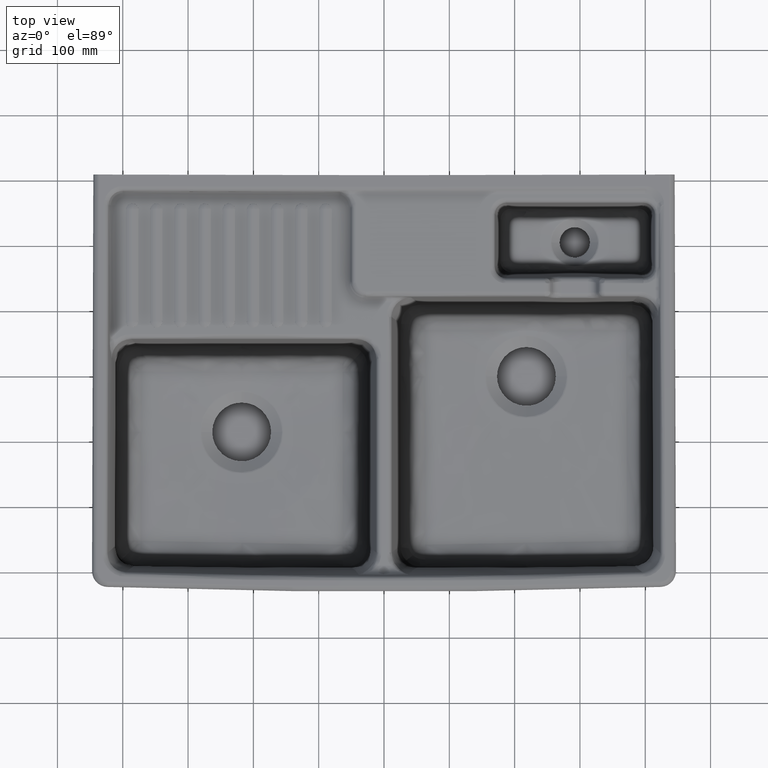
[diagram: clean part render]
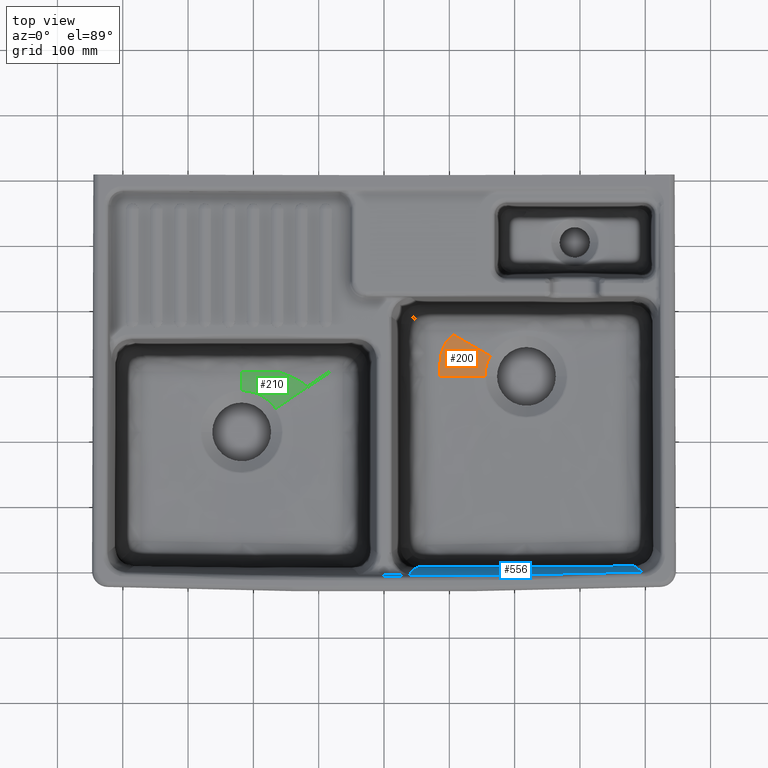
[diagram: same view with three faces highlighted in distinct colors, each labeled with its STEP entity id]
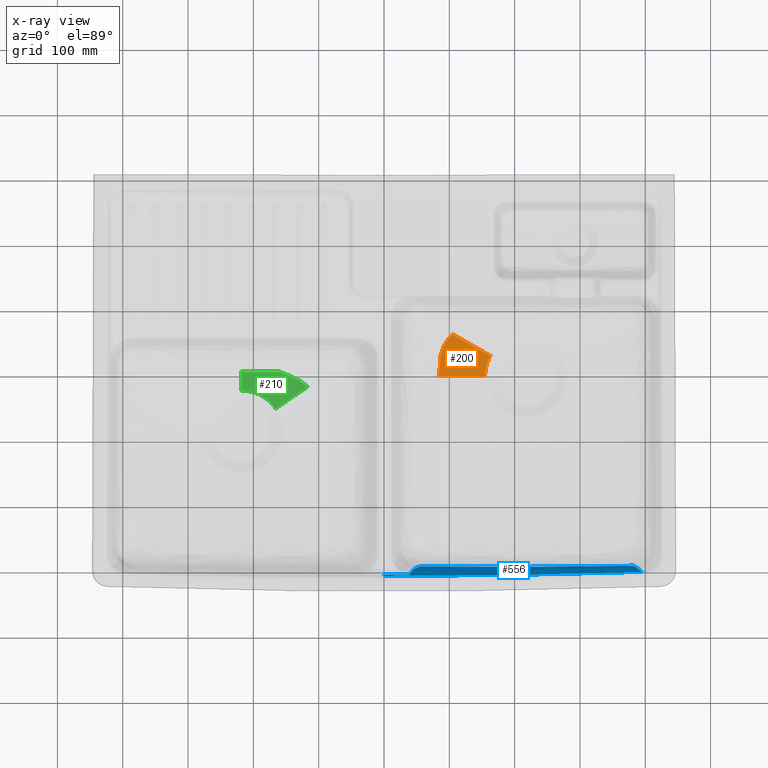
[diagram: x-ray of the same camera — body ghosted, the three highlighted faces saturated]
A machine part, top view with three faces highlighted in distinct colors.
The next image is the same camera in x-ray (body ghosted, the three faces saturated) — at least one of them is partly hidden behind the body in this view.
Their STEP definitions:

[orange] entity #200 — the highlighted face is a freeform B-spline surface patch.
#200=ADVANCED_FACE('',(#1059),#655,.T.);
#655=B_SPLINE_SURFACE_WITH_KNOTS('',7,2,((#9869,#9870,#9871),(#9872,#9873,
#9874),(#9875,#9876,#9877),(#9878,#9879,#9880),(#9881,#9882,#9883),(#9884,
#9885,#9886),(#9887,#9888,#9889),(#9890,#9891,#9892)),.UNSPECIFIED.,.F.,
 .F.,.F.,(8,8),(3,3),(0.,1.),(0.,1.),.UNSPECIFIED.);
#1059=FACE_OUTER_BOUND('',#1510,.T.);
#1510=EDGE_LOOP('',(#2166,#2167,#2168,#2169,#2170));
#2166=ORIENTED_EDGE('',*,*,#5226,.F.);
#2167=ORIENTED_EDGE('',*,*,#5227,.F.);
#2168=ORIENTED_EDGE('',*,*,#5150,.T.);
#2169=ORIENTED_EDGE('',*,*,#5149,.T.);
#2170=ORIENTED_EDGE('',*,*,#5228,.F.);
#4372=VERTEX_POINT('',#8505);
#4373=VERTEX_POINT('',#8510);
#4374=VERTEX_POINT('',#8515);
#4428=VERTEX_POINT('',#9861);
#4429=VERTEX_POINT('',#9862);
#5149=EDGE_CURVE('',#4373,#4372,#6344,.T.);
#5150=EDGE_CURVE('',#4374,#4373,#6345,.T.);
#5226=EDGE_CURVE('',#4428,#4429,#6421,.T.);
#5227=EDGE_CURVE('',#4374,#4428,#6422,.T.);
#5228=EDGE_CURVE('',#4429,#4372,#6423,.T.);
#6344=B_SPLINE_CURVE_WITH_KNOTS('',3,(#8506,#8507,#8508,#8509),
 .UNSPECIFIED.,.F.,.F.,(4,4),(0.,1.),.UNSPECIFIED.);
#6345=B_SPLINE_CURVE_WITH_KNOTS('',3,(#8511,#8512,#8513,#8514),
 .UNSPECIFIED.,.F.,.F.,(4,4),(0.,1.),.UNSPECIFIED.);
#6421=B_SPLINE_CURVE_WITH_KNOTS('',3,(#9857,#9858,#9859,#9860),
 .UNSPECIFIED.,.F.,.F.,(4,4),(0.,1.),.UNSPECIFIED.);
#6422=B_SPLINE_CURVE_WITH_KNOTS('',2,(#9863,#9864,#9865),.UNSPECIFIED.,
 .F.,.F.,(3,3),(0.,1.),.UNSPECIFIED.);
#6423=B_SPLINE_CURVE_WITH_KNOTS('',2,(#9866,#9867,#9868),.UNSPECIFIED.,
 .F.,.F.,(3,3),(0.,1.),.UNSPECIFIED.);
#8505=CARTESIAN_POINT('',(162.915549956233,31.3930167455002,-184.928676394723));
#8506=CARTESIAN_POINT('',(156.63763608311,16.0511124634852,-184.937581246668));
#8507=CARTESIAN_POINT('',(158.531925795111,23.2705537759787,-184.935198886285));
#8508=CARTESIAN_POINT('',(161.091750666427,28.197206297824,-184.929236146348));
#8509=CARTESIAN_POINT('',(162.915550015483,31.3930163111323,-184.928672776595));
#8510=CARTESIAN_POINT('',(156.637725012648,16.0510871465382,-184.936260527944));
#8511=CARTESIAN_POINT('',(154.5642905736,0.,-184.94078));
#8512=CARTESIAN_POINT('',(154.573770911299,5.50145245596801,-184.941379999939));
#8513=CARTESIAN_POINT('',(155.283468855857,10.9030062247191,-184.939061087602));
#8514=CARTESIAN_POINT('',(156.637635491601,16.05111020976,-184.937581247402));
#8515=CARTESIAN_POINT('',(154.564290261251,0.,-184.940784935981));
#9857=CARTESIAN_POINT('',(84.39746,0.,-180.5));
#9858=CARTESIAN_POINT('',(84.39746,24.57353,-180.5));
#9859=CARTESIAN_POINT('',(85.50284,47.6954,-180.5));
#9860=CARTESIAN_POINT('',(105.61008,64.05182,-180.5));
#9861=CARTESIAN_POINT('',(84.39746,0.,-180.5));
#9862=CARTESIAN_POINT('',(105.61008,64.05183,-180.5));
#9863=CARTESIAN_POINT('',(154.5642905736,0.,-184.94078));
#9864=CARTESIAN_POINT('',(119.4808752868,0.,-182.72039));
#9865=CARTESIAN_POINT('',(84.39746,0.,-180.5));
#9866=CARTESIAN_POINT('',(105.61008,64.05183,-180.5));
#9867=CARTESIAN_POINT('',(134.281222782639,47.711927366399,-182.327875987081));
#9868=CARTESIAN_POINT('',(162.915550080676,31.3930162739782,-184.928672782516));
#9869=CARTESIAN_POINT('',(155.5,0.,-185.));
#9870=CARTESIAN_POINT('',(119.94873,0.,-182.75));
#9871=CARTESIAN_POINT('',(84.39746,0.,-180.5));
#9872=CARTESIAN_POINT('',(155.5,4.7695,-185.));
#9873=CARTESIAN_POINT('',(119.94873,7.64897,-182.75));
#9874=CARTESIAN_POINT('',(84.39746,10.53151,-180.5));
#9875=CARTESIAN_POINT('',(155.92456,9.48383,-185.));
#9876=CARTESIAN_POINT('',(120.24533,15.16666,-182.63654));
#9877=CARTESIAN_POINT('',(84.55536,20.85565,-180.5));
#9878=CARTESIAN_POINT('',(156.75613,14.10256,-185.));
#9879=CARTESIAN_POINT('',(121.07745,22.45695,-182.5798));
#9880=CARTESIAN_POINT('',(85.38251,30.82058,-180.5));
#9881=CARTESIAN_POINT('',(157.97388,18.58907,-185.));
#9882=CARTESIAN_POINT('',(122.69293,29.42562,-182.52307));
#9883=CARTESIAN_POINT('',(87.39023,40.27449,-180.5));
#9884=CARTESIAN_POINT('',(159.55432,22.91055,-185.));
#9885=CARTESIAN_POINT('',(125.3356,35.98035,-182.46637));
#9886=CARTESIAN_POINT('',(91.08984,49.06554,-180.5));
#9887=CARTESIAN_POINT('',(161.47183,27.03804,-185.));
#9888=CARTESIAN_POINT('',(129.25751,42.02242,-182.22716));
#9889=CARTESIAN_POINT('',(96.99268,57.04193,-180.5));
#9890=CARTESIAN_POINT('',(163.69925,30.94638,-185.));
#9891=CARTESIAN_POINT('',(134.67358,47.48832,-182.35289));
#9892=CARTESIAN_POINT('',(105.61008,64.05183,-180.5));

[blue] entity #556 — the highlighted face is a freeform B-spline surface patch.
#556=ADVANCED_FACE('',(#1413),#981,.T.);
#981=B_SPLINE_SURFACE_WITH_KNOTS('',3,6,((#35262,#35263,#35264,#35265,#35266,
#35267,#35268),(#35269,#35270,#35271,#35272,#35273,#35274,#35275),(#35276,
#35277,#35278,#35279,#35280,#35281,#35282),(#35283,#35284,#35285,#35286,
#35287,#35288,#35289)),.UNSPECIFIED.,.F.,.F.,.F.,(4,4),(7,7),(0.,1.),(0.,
1.),.UNSPECIFIED.);
#1413=FACE_OUTER_BOUND('',#1874,.T.);
#1874=EDGE_LOOP('',(#3993,#3994,#3995,#3996,#3997,#3998,#3999,#4000,#4001,
#4002,#4003,#4004,#4005));
#3993=ORIENTED_EDGE('',*,*,#6044,.T.);
#3994=ORIENTED_EDGE('',*,*,#6046,.T.);
#3995=ORIENTED_EDGE('',*,*,#6047,.T.);
#3996=ORIENTED_EDGE('',*,*,#6049,.T.);
#3997=ORIENTED_EDGE('',*,*,#6051,.T.);
#3998=ORIENTED_EDGE('',*,*,#6053,.T.);
#3999=ORIENTED_EDGE('',*,*,#6055,.T.);
#4000=ORIENTED_EDGE('',*,*,#6054,.T.);
#4001=ORIENTED_EDGE('',*,*,#6057,.T.);
#4002=ORIENTED_EDGE('',*,*,#6094,.T.);
#4003=ORIENTED_EDGE('',*,*,#6140,.F.);
#4004=ORIENTED_EDGE('',*,*,#6137,.T.);
#4005=ORIENTED_EDGE('',*,*,#6058,.T.);
#4856=VERTEX_POINT('',#28756);
#4874=VERTEX_POINT('',#29291);
#4881=VERTEX_POINT('',#30024);
#4930=VERTEX_POINT('',#32147);
#4931=VERTEX_POINT('',#32240);
#4932=VERTEX_POINT('',#32422);
#4933=VERTEX_POINT('',#32807);
#4934=VERTEX_POINT('',#32892);
#4935=VERTEX_POINT('',#32978);
#4936=VERTEX_POINT('',#32979);
#4937=VERTEX_POINT('',#33144);
#4962=VERTEX_POINT('',#33904);
#4990=VERTEX_POINT('',#35151);
#6044=EDGE_CURVE('',#4874,#4930,#7239,.T.);
#6046=EDGE_CURVE('',#4930,#4931,#7241,.T.);
#6047=EDGE_CURVE('',#4931,#4932,#7242,.T.);
#6049=EDGE_CURVE('',#4932,#4856,#7244,.T.);
#6051=EDGE_CURVE('',#4856,#4933,#7246,.T.);
#6053=EDGE_CURVE('',#4933,#4934,#7248,.T.);
#6054=EDGE_CURVE('',#4935,#4936,#7249,.T.);
#6055=EDGE_CURVE('',#4934,#4935,#7250,.T.);
#6057=EDGE_CURVE('',#4936,#4881,#7252,.T.);
#6058=EDGE_CURVE('',#4937,#4874,#7253,.T.);
#6094=EDGE_CURVE('',#4881,#4962,#7289,.T.);
#6137=EDGE_CURVE('',#4990,#4937,#7332,.T.);
#6140=EDGE_CURVE('',#4990,#4962,#7335,.T.);
#7239=B_SPLINE_CURVE_WITH_KNOTS('',6,(#32148,#32149,#32150,#32151,#32152,
#32153,#32154),.UNSPECIFIED.,.F.,.F.,(7,7),(0.,1.),.UNSPECIFIED.);
#7241=B_SPLINE_CURVE_WITH_KNOTS('',3,(#32241,#32242,#32243,#32244,#32245,
#32246),.UNSPECIFIED.,.F.,.F.,(4,2,4),(0.,0.5,1.),.UNSPECIFIED.);
#7242=B_SPLINE_CURVE_WITH_KNOTS('',3,(#32416,#32417,#32418,#32419,#32420,
#32421),.UNSPECIFIED.,.F.,.F.,(4,2,4),(0.,0.5,1.),.UNSPECIFIED.);
#7244=B_SPLINE_CURVE_WITH_KNOTS('',6,(#32679,#32680,#32681,#32682,#32683,
#32684,#32685),.UNSPECIFIED.,.F.,.F.,(7,7),(0.,1.),.UNSPECIFIED.);
#7246=B_SPLINE_CURVE_WITH_KNOTS('',3,(#32808,#32809,#32810,#32811,#32812,
#32813,#32814,#32815,#32816,#32817,#32818,#32819,#32820,#32821,#32822,#32823,
#32824),.UNSPECIFIED.,.F.,.F.,(4,2,2,2,1,1,1,1,1,2,4),(0.,0.500000000000001,
0.750000000000001,0.875000000000001,0.937500000000001,0.968750000000001,
0.984375000000001,0.992187500000001,0.99609375,0.998046875,1.),
 .UNSPECIFIED.);
#7248=B_SPLINE_CURVE_WITH_KNOTS('',3,(#32893,#32894,#32895,#32896,#32897,
#32898,#32899,#32900,#32901,#32902,#32903,#32904,#32905,#32906,#32907,#32908,
#32909,#32910,#32911,#32912,#32913,#32914,#32915,#32916,#32917,#32918,#32919,
#32920,#32921),.UNSPECIFIED.,.F.,.F.,(4,2,1,1,1,1,2,2,2,2,2,1,1,1,1,1,1,
1,2,4),(0.,0.00195312500000018,0.00390625000000035,0.00781250000000018,
0.0156250000000004,0.0312500000000008,0.0625000000000009,0.125000000000001,
0.250000000000001,0.500000000000001,0.750000000000001,0.875000000000001,
0.9375,0.96875,0.984375,0.9921875,0.99609375,0.998046874999999,0.9990234375,
1.),.UNSPECIFIED.);
#7249=B_SPLINE_CURVE_WITH_KNOTS('',6,(#32971,#32972,#32973,#32974,#32975,
#32976,#32977),.UNSPECIFIED.,.F.,.F.,(7,7),(0.,1.),.UNSPECIFIED.);
#7250=B_SPLINE_CURVE_WITH_KNOTS('',3,(#32980,#32981,#32982,#32983),
 .UNSPECIFIED.,.F.,.F.,(4,4),(0.,1.),.UNSPECIFIED.);
#7252=B_SPLINE_CURVE_WITH_KNOTS('',3,(#33072,#33073,#33074,#33075),
 .UNSPECIFIED.,.F.,.F.,(4,4),(0.,1.),.UNSPECIFIED.);
#7253=B_SPLINE_CURVE_WITH_KNOTS('',3,(#33125,#33126,#33127,#33128,#33129,
#33130,#33131,#33132,#33133,#33134,#33135,#33136,#33137,#33138,#33139,#33140,
#33141,#33142,#33143),.UNSPECIFIED.,.F.,.F.,(4,2,2,2,2,1,1,1,1,1,2,4),(0.,
0.5,0.75,0.874999999999999,0.937499999999999,0.968749999999999,0.984374999999999,
0.9921875,0.99609375,0.998046875,0.9990234375,1.),.UNSPECIFIED.);
#7289=B_SPLINE_CURVE_WITH_KNOTS('',3,(#33905,#33906,#33907,#33908),
 .UNSPECIFIED.,.F.,.F.,(4,4),(0.,1.),.UNSPECIFIED.);
#7332=B_SPLINE_CURVE_WITH_KNOTS('',3,(#35112,#35113,#35114,#35115,#35116,
#35117,#35118,#35119,#35120,#35121,#35122,#35123,#35124,#35125,#35126,#35127,
#35128,#35129,#35130,#35131,#35132,#35133,#35134,#35135,#35136,#35137,#35138,
#35139,#35140,#35141,#35142,#35143,#35144,#35145,#35146,#35147,#35148,#35149,
#35150),.UNSPECIFIED.,.F.,.F.,(4,2,1,1,1,1,2,2,2,2,2,1,1,2,2,2,2,2,2,1,
1,1,2,4),(0.,0.0019531250000002,0.0039062500000004,0.0078125000000002,0.0156250000000004,
0.0312500000000009,0.0625000000000018,0.125000000000004,0.250000000000007,
0.500000000000013,0.507812500000013,0.515625000000013,0.531250000000013,
0.562500000000012,0.62500000000001,0.750000000000007,0.875000000000003,
0.937500000000002,0.968750000000001,0.984375000000001,0.9921875,0.99609375,
0.998046875,1.),.UNSPECIFIED.);
#7335=B_SPLINE_CURVE_WITH_KNOTS('',5,(#35256,#35257,#35258,#35259,#35260,
#35261),.UNSPECIFIED.,.F.,.F.,(6,6),(0.,1.),.UNSPECIFIED.);
#28756=CARTESIAN_POINT('',(55.5293973308112,-292.002504332253,-139.739952036971));
#29291=CARTESIAN_POINT('',(381.80913538307,-290.823126584136,-139.741372275403));
#30024=CARTESIAN_POINT('',(2.46706874411747E-9,-306.735919889685,-12.2031044139621));
#32147=CARTESIAN_POINT('',(372.162628789729,-291.087035696764,-139.740500303687));
#32148=CARTESIAN_POINT('',(381.80905169091,-290.822838015821,-139.741597054259));
#32149=CARTESIAN_POINT('',(380.201517711606,-290.868129314891,-139.741439724011));
#32150=CARTESIAN_POINT('',(378.593917578215,-290.912947691282,-139.741273414489));
#32151=CARTESIAN_POINT('',(376.986247252343,-290.957269484965,-139.74109717802));
#32152=CARTESIAN_POINT('',(375.378502973032,-291.001072555819,-139.740910128039));
#32153=CARTESIAN_POINT('',(373.770681249911,-291.044336240873,-139.740711437355));
#32154=CARTESIAN_POINT('',(372.162778856219,-291.087041311509,-139.740500336419));
#32240=CARTESIAN_POINT('',(218.000508237254,-292.606628218391,-139.739664313358));
#32241=CARTESIAN_POINT('',(372.162778856219,-291.087041311509,-139.740500336419));
#32242=CARTESIAN_POINT('',(346.528969810051,-291.767719784649,-139.751102763938));
#32243=CARTESIAN_POINT('',(320.865138847526,-292.24747104353,-139.75682519005));
#32244=CARTESIAN_POINT('',(269.467579069978,-292.713072338656,-139.754888780648));
#32245=CARTESIAN_POINT('',(243.735899921933,-292.710008192178,-139.747678058784));
#32246=CARTESIAN_POINT('',(218.001162011457,-292.606652563773,-139.7396648581));
#32416=CARTESIAN_POINT('',(218.000580837141,-292.606650224797,-139.739664869517));
#32417=CARTESIAN_POINT('',(192.164233003646,-292.502845780053,-139.733178668525));
#32418=CARTESIAN_POINT('',(166.327136992097,-292.309271055832,-139.726338551042));
#32419=CARTESIAN_POINT('',(114.71604809666,-292.046065347175,-139.72402705489));
#32420=CARTESIAN_POINT('',(88.9446656187388,-291.987950458697,-139.729010979282));
#32421=CARTESIAN_POINT('',(63.2046941400738,-291.99791865294,-139.73987816516));
#32422=CARTESIAN_POINT('',(63.2052070694674,-291.997928374174,-139.739878605077));
#32679=CARTESIAN_POINT('',(63.2046941400738,-291.99791865294,-139.73987816516));
#32680=CARTESIAN_POINT('',(61.9252876870131,-291.998446584491,-139.739641629269));
#32681=CARTESIAN_POINT('',(60.6459335812918,-291.999066169892,-139.739415001217));
#32682=CARTESIAN_POINT('',(59.3666301343422,-291.999770300306,-139.739197996861));
#32683=CARTESIAN_POINT('',(58.0873755340606,-292.000551329131,-139.738990310684));
#32684=CARTESIAN_POINT('',(56.8081678413238,-292.001401057938,-139.738791615246));
#32685=CARTESIAN_POINT('',(55.5290049864742,-292.002310722401,-139.738601560625));
#32807=CARTESIAN_POINT('',(49.2063082221177,-295.026455477892,-84.2767156031774));
#32808=CARTESIAN_POINT('',(55.5290049864691,-292.002310722403,-139.738601560574));
#32809=CARTESIAN_POINT('',(54.384101430938,-292.471533862681,-128.591668594974));
#32810=CARTESIAN_POINT('',(53.2846988405232,-292.938228772494,-118.540020817989));
#32811=CARTESIAN_POINT('',(51.7040117536261,-293.679936839852,-104.778753610862));
#32812=CARTESIAN_POINT('',(51.1885182977797,-293.934063607547,-100.41134842725));
#32813=CARTESIAN_POINT('',(50.43239756596,-294.330796768845,-94.1517166292198));
#32814=CARTESIAN_POINT('',(50.1832105347437,-294.465628391755,-92.1137710935336));
#32815=CARTESIAN_POINT('',(49.8137115699104,-294.672378371379,-89.1251639770569));
#32816=CARTESIAN_POINT('',(49.6300324805216,-294.776878695459,-87.6479399701229));
#32817=CARTESIAN_POINT('',(49.41761375773,-294.900897892617,-85.9534163342681));
#32818=CARTESIAN_POINT('',(49.3118728266078,-294.963449395626,-85.1132588702447));
#32819=CARTESIAN_POINT('',(49.2591194739723,-294.99486266253,-84.6949410468658));
#32820=CARTESIAN_POINT('',(49.2327720765496,-295.010603928947,-84.4862204694684));
#32821=CARTESIAN_POINT('',(49.2214866089167,-295.017357634515,-84.3968625196573));
#32822=CARTESIAN_POINT('',(49.2139643580848,-295.021861763142,-84.3373113586723));
#32823=CARTESIAN_POINT('',(49.2138259404812,-295.021943458455,-84.3362103832973));
#32824=CARTESIAN_POINT('',(49.2063064442355,-295.026450955784,-84.2767012063548));
#32892=CARTESIAN_POINT('',(38.6636505242867,-306.540871404729,-12.6964167519503));
#32893=CARTESIAN_POINT('',(49.2063064442355,-295.026450955784,-84.2767012063548));
#32894=CARTESIAN_POINT('',(49.194390273698,-295.033594126242,-84.1823951670655));
#32895=CARTESIAN_POINT('',(49.1942504612875,-295.03368113114,-84.1813018041916));
#32896=CARTESIAN_POINT('',(49.1823246990763,-295.040842721334,-84.0869693056087));
#32897=CARTESIAN_POINT('',(49.1644288061459,-295.051598944692,-83.94544955898));
#32898=CARTESIAN_POINT('',(49.1226209759557,-295.076793998101,-83.6150909370798));
#32899=CARTESIAN_POINT('',(49.0388023337244,-295.127575577912,-82.953799019965));
#32900=CARTESIAN_POINT('',(48.8703531614767,-295.230726325688,-81.628986532027));
#32901=CARTESIAN_POINT('',(48.7245764865472,-295.321938142525,-80.4898502716562));
#32902=CARTESIAN_POINT('',(48.4311679629472,-295.508303781936,-78.2074028900216));
#32903=CARTESIAN_POINT('',(48.2330887082743,-295.637798739717,-76.6802186779399));
#32904=CARTESIAN_POINT('',(47.6314335840377,-296.04390777919,-72.086355129537));
#32905=CARTESIAN_POINT('',(47.2204402432509,-296.338059025781,-69.0076391822042));
#32906=CARTESIAN_POINT('',(45.9578214114045,-297.308641257141,-59.7490378717948));
#32907=CARTESIAN_POINT('',(45.0835213368613,-298.06431089843,-53.5999194145894));
#32908=CARTESIAN_POINT('',(43.2282225487014,-299.968265092386,-41.0802540424605));
#32909=CARTESIAN_POINT('',(42.3067563250091,-301.048117116532,-35.1848815079906));
#32910=CARTESIAN_POINT('',(40.933865330134,-302.911743647725,-26.615268066578));
#32911=CARTESIAN_POINT('',(40.2497463206627,-303.904520493906,-22.3988214791908));
#32912=CARTESIAN_POINT('',(39.4556799391149,-305.180843598408,-17.5394790303978));
#32913=CARTESIAN_POINT('',(39.0596645445205,-305.849951634649,-15.1172950505466));
#32914=CARTESIAN_POINT('',(38.8619112440091,-306.192420499542,-13.9071405878591));
#32915=CARTESIAN_POINT('',(38.7630981848825,-306.365655925055,-13.3021809496636));
#32916=CARTESIAN_POINT('',(38.7137075519977,-306.452776671443,-12.9997159300721));
#32917=CARTESIAN_POINT('',(38.6890162095809,-306.496463151227,-12.848485295293));
#32918=CARTESIAN_POINT('',(38.6784350572492,-306.515212988423,-12.7836723723699));
#32919=CARTESIAN_POINT('',(38.6713811449288,-306.527718897399,-12.7404637812004));
#32920=CARTESIAN_POINT('',(38.691848568269,-306.528253350615,-12.738401888098));
#32921=CARTESIAN_POINT('',(38.6636785861633,-306.540516325426,-12.6962850009628));
#32971=CARTESIAN_POINT('',(38.5791456401202,-306.685903200557,-12.1963388083461));
#32972=CARTESIAN_POINT('',(38.4503098851376,-306.686276121296,-12.196329039066));
#32973=CARTESIAN_POINT('',(38.3214742744,-306.686647554423,-12.1963193116726));
#32974=CARTESIAN_POINT('',(38.1926388062587,-306.687017498826,-12.1963096257263));
#32975=CARTESIAN_POINT('',(38.0638034790564,-306.687385953386,-12.1962999807848));
#32976=CARTESIAN_POINT('',(37.9349682911276,-306.687752916979,-12.1962903764041));
#32977=CARTESIAN_POINT('',(37.8061332407988,-306.688118388476,-12.1962808121377));
#32978=CARTESIAN_POINT('',(38.5791456391286,-306.685902680981,-12.1963386570205));
#32979=CARTESIAN_POINT('',(37.8066320803348,-306.688157801522,-12.1962926874971));
#32980=CARTESIAN_POINT('',(38.6631876468234,-306.540534911411,-12.6962256158497));
#32981=CARTESIAN_POINT('',(38.6351734596485,-306.588811602955,-12.5295981665699));
#32982=CARTESIAN_POINT('',(38.6071594576361,-306.637267382614,-12.3629708919231));
#32983=CARTESIAN_POINT('',(38.5791456401202,-306.685903200557,-12.1963388083461));
#33072=CARTESIAN_POINT('',(37.8061332407786,-306.688118388476,-12.1962808121378));
#33073=CARTESIAN_POINT('',(25.2039934796836,-306.722951211468,-12.1984892281895));
#33074=CARTESIAN_POINT('',(12.6037597674151,-306.740116118353,-12.2012452204697));
#33075=CARTESIAN_POINT('',(0.,-306.735919518462,-12.2031043056429));
#33125=CARTESIAN_POINT('',(383.491089634153,-292.410695074629,-76.0893678524201));
#33126=CARTESIAN_POINT('',(383.081680367147,-292.032723689355,-83.2352618930502));
#33127=CARTESIAN_POINT('',(382.736842752197,-291.700737259008,-91.6536391754363));
#33128=CARTESIAN_POINT('',(382.316344909421,-291.301883720126,-107.155623528476));
#33129=CARTESIAN_POINT('',(382.192306513374,-291.185062501048,-112.806820426547));
#33130=CARTESIAN_POINT('',(382.030442031466,-291.033076553319,-122.180941698865));
#33131=CARTESIAN_POINT('',(381.980519509752,-290.986249602959,-125.455597429672));
#33132=CARTESIAN_POINT('',(381.911685620181,-290.921248206677,-130.617756375942));
#33133=CARTESIAN_POINT('',(381.889749314937,-290.900451279735,-132.380199815209));
#33134=CARTESIAN_POINT('',(381.858357609367,-290.870468956252,-135.089866913921));
#33135=CARTESIAN_POINT('',(381.843039945584,-290.855780758064,-136.461203723411));
#33136=CARTESIAN_POINT('',(381.825831236677,-290.839151256573,-138.090754478452));
#33137=CARTESIAN_POINT('',(381.817392366212,-290.830960004851,-138.913043712667));
#33138=CARTESIAN_POINT('',(381.813214303159,-290.826894848507,-139.326079284506));
#33139=CARTESIAN_POINT('',(381.811135614827,-290.824869836195,-139.533071378192));
#33140=CARTESIAN_POINT('',(381.810246964814,-290.824003589464,-139.621884081398));
#33141=CARTESIAN_POINT('',(381.809655024011,-290.823426450065,-139.681115192489));
#33142=CARTESIAN_POINT('',(381.809642660175,-290.823414423722,-139.682320491946));
#33143=CARTESIAN_POINT('',(381.80905169091,-290.822838015821,-139.741597054259));
#33144=CARTESIAN_POINT('',(383.49108981626,-292.410702537341,-76.0893689261647));
#33904=CARTESIAN_POINT('',(-8.21716245631347E-14,-308.767155935473,-5.56408651623336));
#33905=CARTESIAN_POINT('',(0.,-306.735919518468,-12.2031043056224));
#33906=CARTESIAN_POINT('',(0.,-307.380658206042,-9.99478581224546));
#33907=CARTESIAN_POINT('',(0.,-308.056999282305,-7.78564723230158));
#33908=CARTESIAN_POINT('',(0.,-308.767163361615,-5.56408427128158));
#35112=CARTESIAN_POINT('',(395.203451091198,-302.648283021701,-5.82502254356028));
#35113=CARTESIAN_POINT('',(395.176876142434,-302.625132918602,-5.90989550972433));
#35114=CARTESIAN_POINT('',(395.17652989712,-302.624832888078,-5.91103450566975));
#35115=CARTESIAN_POINT('',(395.149998608369,-302.601724698764,-5.99590563742939));
#35116=CARTESIAN_POINT('',(395.110234715371,-302.567093480133,-6.12321131717116));
#35117=CARTESIAN_POINT('',(395.017683575944,-302.486504653783,-6.42025239163599));
#35118=CARTESIAN_POINT('',(394.833506380871,-302.326195543706,-7.01432543020754));
#35119=CARTESIAN_POINT('',(394.468852115696,-302.009044560892,-8.2025389604815));
#35120=CARTESIAN_POINT('',(394.162633674172,-301.743120718362,-9.22148095913346));
#35121=CARTESIAN_POINT('',(393.558651439379,-301.219099712112,-11.2609668601064));
#35122=CARTESIAN_POINT('',(393.167269452207,-300.880188892717,-12.622753517424));
#35123=CARTESIAN_POINT('',(392.026928400803,-299.894200219399,-16.7225018148901));
#35124=CARTESIAN_POINT('',(391.311773802606,-299.277881645052,-19.4747453900599));
#35125=CARTESIAN_POINT('',(389.301435704807,-297.546870735817,-27.8564871546232));
#35126=CARTESIAN_POINT('',(388.141371447561,-296.550383273831,-33.609207204965));
#35127=CARTESIAN_POINT('',(387.130676098713,-295.668102990431,-39.9196670342551));
#35128=CARTESIAN_POINT('',(387.111579169942,-295.651420719455,-40.0398735470167));
#35129=CARTESIAN_POINT('',(387.062128632919,-295.608206980262,-40.3525217150006));
#35130=CARTESIAN_POINT('',(386.988224421404,-295.543589331478,-40.8227264260897));
#35131=CARTESIAN_POINT('',(386.817682360603,-295.394242697623,-41.9285999903478));
#35132=CARTESIAN_POINT('',(386.674762279091,-295.268703267744,-42.8918094113362));
#35133=CARTESIAN_POINT('',(386.393266706253,-295.020980480275,-44.839635452921));
#35134=CARTESIAN_POINT('',(386.211395770074,-294.860308454724,-46.1667130728064));
#35135=CARTESIAN_POINT('',(385.683157464172,-294.392141891612,-50.2419614276582));
#35136=CARTESIAN_POINT('',(385.354164453732,-294.098527859394,-53.0838710921167));
#35137=CARTESIAN_POINT('',(384.742492907945,-293.549833456847,-59.0691917497895));
#35138=CARTESIAN_POINT('',(384.459814351237,-293.294757515777,-62.2125744937647));
#35139=CARTESIAN_POINT('',(384.070523037382,-292.941421393508,-67.1991349905545));
#35140=CARTESIAN_POINT('',(383.946547059483,-292.828513739167,-68.9066439911036));
#35141=CARTESIAN_POINT('',(383.76926399682,-292.666423651018,-71.5422637617748));
#35142=CARTESIAN_POINT('',(383.71161646268,-292.613604930727,-72.4332013919418));
#35143=CARTESIAN_POINT('',(383.627315318328,-292.536183968727,-73.7890468655549));
#35144=CARTESIAN_POINT('',(383.585707285631,-292.497925209474,-74.4718298441538));
#35145=CARTESIAN_POINT('',(383.5381140117,-292.454077730832,-75.2771048681741));
#35146=CARTESIAN_POINT('',(383.514554731016,-292.432350533213,-75.6819401730894));
#35147=CARTESIAN_POINT('',(383.504508758349,-292.423080949876,-75.8559145622988));
#35148=CARTESIAN_POINT('',(383.497822745869,-292.416910572221,-75.9720030091795));
#35149=CARTESIAN_POINT('',(383.497753183665,-292.416846591881,-75.9730675997133));
#35150=CARTESIAN_POINT('',(383.491089630887,-292.410695074735,-76.0893678522386));
#35151=CARTESIAN_POINT('',(395.204284293377,-302.648127354555,-5.8250024549395));
#35256=CARTESIAN_POINT('',(395.20514,-302.64822,-5.82502));
#35257=CARTESIAN_POINT('',(316.19104,-305.14706,-5.81707));
#35258=CARTESIAN_POINT('',(237.16151,-307.01141,-5.7974));
#35259=CARTESIAN_POINT('',(158.11452,-308.1282,-5.53846));
#35260=CARTESIAN_POINT('',(79.04841,-308.77365,-5.57717));
#35261=CARTESIAN_POINT('',(0.,-308.76715,-5.56408));
#35262=CARTESIAN_POINT('',(0.,-288.85577,-219.99998));
#35263=CARTESIAN_POINT('',(73.97581,-289.20468,-220.));
#35264=CARTESIAN_POINT('',(147.72392,-287.79199,-219.99994));
#35265=CARTESIAN_POINT('',(222.39525,-291.67041,-220.00005));
#35266=CARTESIAN_POINT('',(296.89667,-294.40744,-220.00002));
#35267=CARTESIAN_POINT('',(370.67102,-290.35687,-219.99997));
#35268=CARTESIAN_POINT('',(444.63965,-288.53378,-220.));
#35269=CARTESIAN_POINT('',(0.,-294.76587,-67.20013));
#35270=CARTESIAN_POINT('',(74.00373,-294.87454,-67.21758));
#35271=CARTESIAN_POINT('',(147.8197,-294.07211,-67.17326));
#35272=CARTESIAN_POINT('',(222.42766,-294.55765,-67.41923));
#35273=CARTESIAN_POINT('',(296.9249,-294.30374,-67.63609));
#35274=CARTESIAN_POINT('',(370.63718,-291.59476,-67.53889));
#35275=CARTESIAN_POINT('',(444.64865,-289.2085,-67.57969));
#35276=CARTESIAN_POINT('',(0.,-294.50571,-39.14607));
#35277=CARTESIAN_POINT('',(74.00166,-294.5704,-39.16644));
#35278=CARTESIAN_POINT('',(147.82057,-293.87946,-39.11469));
#35279=CARTESIAN_POINT('',(222.43608,-293.74429,-39.40201));
#35280=CARTESIAN_POINT('',(296.94922,-292.94028,-39.65538));
#35281=CARTESIAN_POINT('',(370.63489,-290.47809,-39.54182));
#35282=CARTESIAN_POINT('',(444.64841,-287.98825,-39.58948));
#35283=CARTESIAN_POINT('',(0.,-317.73337,19.14683));
#35284=CARTESIAN_POINT('',(74.09835,-317.70062,19.15001));
#35285=CARTESIAN_POINT('',(148.16315,-317.25674,19.14192));
#35286=CARTESIAN_POINT('',(222.40236,-315.742,19.18686));
#35287=CARTESIAN_POINT('',(296.62051,-313.74554,19.22649));
#35288=CARTESIAN_POINT('',(370.60266,-311.82074,19.20873));
#35289=CARTESIAN_POINT('',(444.67044,-309.10516,19.21618));

[green] entity #210 — the highlighted face is a freeform B-spline surface patch.
#210=ADVANCED_FACE('',(#1069),#665,.T.);
#665=B_SPLINE_SURFACE_WITH_KNOTS('',7,2,((#10289,#10290,#10291),(#10292,
#10293,#10294),(#10295,#10296,#10297),(#10298,#10299,#10300),(#10301,#10302,
#10303),(#10304,#10305,#10306),(#10307,#10308,#10309),(#10310,#10311,#10312)),
 .UNSPECIFIED.,.F.,.F.,.F.,(8,8),(3,3),(0.,1.),(0.,1.),.UNSPECIFIED.);
#1069=FACE_OUTER_BOUND('',#1520,.T.);
#1520=EDGE_LOOP('',(#2209,#2210,#2211,#2212,#2213,#2214));
#2209=ORIENTED_EDGE('',*,*,#5250,.F.);
#2210=ORIENTED_EDGE('',*,*,#5244,.T.);
#2211=ORIENTED_EDGE('',*,*,#5170,.T.);
#2212=ORIENTED_EDGE('',*,*,#5169,.T.);
#2213=ORIENTED_EDGE('',*,*,#5173,.T.);
#2214=ORIENTED_EDGE('',*,*,#5251,.F.);
#4352=VERTEX_POINT('',#8066);
#4384=VERTEX_POINT('',#8825);
#4386=VERTEX_POINT('',#8878);
#4388=VERTEX_POINT('',#8926);
#4438=VERTEX_POINT('',#10206);
#4442=VERTEX_POINT('',#10283);
#5169=EDGE_CURVE('',#4386,#4352,#6364,.T.);
#5170=EDGE_CURVE('',#4384,#4386,#6365,.T.);
#5173=EDGE_CURVE('',#4352,#4388,#6368,.T.);
#5244=EDGE_CURVE('',#4438,#4384,#6439,.T.);
#5250=EDGE_CURVE('',#4438,#4442,#6445,.T.);
#5251=EDGE_CURVE('',#4442,#4388,#6446,.T.);
#6364=B_SPLINE_CURVE_WITH_KNOTS('',3,(#8872,#8873,#8874,#8875,#8876,#8877),
 .UNSPECIFIED.,.F.,.F.,(4,2,4),(0.,0.5,1.),.UNSPECIFIED.);
#6365=B_SPLINE_CURVE_WITH_KNOTS('',3,(#8879,#8880,#8881,#8882),
 .UNSPECIFIED.,.F.,.F.,(4,4),(0.,1.),.UNSPECIFIED.);
#6368=B_SPLINE_CURVE_WITH_KNOTS('',2,(#8927,#8928,#8929),.UNSPECIFIED.,
 .F.,.F.,(3,3),(0.,1.),.UNSPECIFIED.);
#6439=B_SPLINE_CURVE_WITH_KNOTS('',2,(#10203,#10204,#10205),
 .UNSPECIFIED.,.F.,.F.,(3,3),(0.,1.),.UNSPECIFIED.);
#6445=B_SPLINE_CURVE_WITH_KNOTS('',7,(#10275,#10276,#10277,#10278,#10279,
#10280,#10281,#10282),.UNSPECIFIED.,.F.,.F.,(8,8),(0.,1.),.UNSPECIFIED.);
#6446=B_SPLINE_CURVE_WITH_KNOTS('',4,(#10284,#10285,#10286,#10287,#10288),
 .UNSPECIFIED.,.F.,.F.,(5,5),(0.,1.),.UNSPECIFIED.);
#8066=CARTESIAN_POINT('',(-165.680579520824,-49.265035860843,-184.914291042055));
#8825=CARTESIAN_POINT('',(-218.000000000001,-21.6868791605516,-184.902217586241));
#8872=CARTESIAN_POINT('',(-189.404744226756,-28.5025011416472,-184.904030288296));
#8873=CARTESIAN_POINT('',(-181.78332661663,-32.35101579176,-184.906102576049));
#8874=CARTESIAN_POINT('',(-176.38745422393,-36.9485658271502,-184.906715225489));
#8875=CARTESIAN_POINT('',(-168.926913534964,-44.5821943841678,-184.909486781632));
#8876=CARTESIAN_POINT('',(-166.802356557966,-47.6335196429443,-184.91242563023));
#8877=CARTESIAN_POINT('',(-165.680580322494,-49.265035036006,-184.91428910275));
#8878=CARTESIAN_POINT('',(-189.404740076305,-28.502492907317,-184.904109669833));
#8879=CARTESIAN_POINT('',(-218.,-21.686881227,-184.902215));
#8880=CARTESIAN_POINT('',(-208.21054306029,-21.7143226336438,-184.905514999997));
#8881=CARTESIAN_POINT('',(-198.34078087127,-24.0139543123264,-184.904076977935));
#8882=CARTESIAN_POINT('',(-189.404744240046,-28.5025011349369,-184.904030288292));
#8926=CARTESIAN_POINT('',(-116.69495,-15.80709,-180.5));
#8927=CARTESIAN_POINT('',(-165.680580322623,-49.2650350360943,-184.914289102766));
#8928=CARTESIAN_POINT('',(-144.024190020281,-34.4733738500556,-182.308452743205));
#8929=CARTESIAN_POINT('',(-116.69495,-15.80709,-180.5));
#10203=CARTESIAN_POINT('',(-218.,7.05046995222643,-181.446369603902));
#10204=CARTESIAN_POINT('',(-218.,-7.31820301882555,-183.174291987053));
#10205=CARTESIAN_POINT('',(-218.,-21.6868759898775,-184.902214370203));
#10206=CARTESIAN_POINT('',(-218.,7.05046997616509,-181.446369801945));
#10275=CARTESIAN_POINT('',(-218.,7.05047,-181.44637));
#10276=CARTESIAN_POINT('',(-210.771504216962,7.05047,-181.44637));
#10277=CARTESIAN_POINT('',(-202.010121777312,7.0504567685657,-181.377341607246));
#10278=CARTESIAN_POINT('',(-193.54300701007,7.0504562358128,-181.256241426312));
#10279=CARTESIAN_POINT('',(-185.418267355683,7.05046104678111,-181.094111044425));
#10280=CARTESIAN_POINT('',(-177.390686602689,7.05046511931465,-180.905527161392));
#10281=CARTESIAN_POINT('',(-169.297163422981,7.05046655348154,-180.704408754713));
#10282=CARTESIAN_POINT('',(-161.081643899426,7.05046550150526,-180.500434429046));
#10283=CARTESIAN_POINT('',(-161.081520965889,7.05044797908102,-180.500217182575));
#10284=CARTESIAN_POINT('',(-161.081402274914,7.05043166885199,-180.499999983997));
#10285=CARTESIAN_POINT('',(-148.2965387043,3.19520423386468,-180.499999982744));
#10286=CARTESIAN_POINT('',(-136.473006563815,-1.90919033061074,-180.499999980459));
#10287=CARTESIAN_POINT('',(-125.857059577407,-8.24815440415042,-180.499999977516));
#10288=CARTESIAN_POINT('',(-116.694949655288,-15.8070897645566,-180.49999997719));
#10289=CARTESIAN_POINT('',(-218.,-22.50002,-185.));
#10290=CARTESIAN_POINT('',(-218.,-3.78997,-182.75));
#10291=CARTESIAN_POINT('',(-218.,14.92008,-180.5));
#10292=CARTESIAN_POINT('',(-209.59357,-22.50002,-185.));
#10293=CARTESIAN_POINT('',(-205.59924,-3.78997,-182.75));
#10294=CARTESIAN_POINT('',(-200.76805,14.92008,-180.5));
#10295=CARTESIAN_POINT('',(-201.11813,-23.81914,-185.));
#10296=CARTESIAN_POINT('',(-193.43195,-5.76436,-182.63232));
#10297=CARTESIAN_POINT('',(-184.07133,13.43408,-180.5));
#10298=CARTESIAN_POINT('',(-192.81157,-26.49637,-185.));
#10299=CARTESIAN_POINT('',(-181.73192,-8.86805,-182.57349));
#10300=CARTESIAN_POINT('',(-168.14067,10.47575,-180.5));
#10301=CARTESIAN_POINT('',(-184.92874,-30.52266,-185.));
#10302=CARTESIAN_POINT('',(-170.74226,-13.37559,-182.51462));
#10303=CARTESIAN_POINT('',(-153.20688,6.05879,-180.5));
#10304=CARTESIAN_POINT('',(-177.73125,-35.83377,-185.));
#10305=CARTESIAN_POINT('',(-160.70903,-19.24802,-182.45581));
#10306=CARTESIAN_POINT('',(-139.50078,0.19688,-180.5));
#10307=CARTESIAN_POINT('',(-171.47415,-42.30505,-185.));
#10308=CARTESIAN_POINT('',(-151.89066,-26.43101,-182.12494));
#10309=CARTESIAN_POINT('',(-127.2532,-7.09631,-180.5));
#10310=CARTESIAN_POINT('',(-166.38959,-49.7493,-185.));
#10311=CARTESIAN_POINT('',(-144.47252,-34.77959,-182.33812));
#10312=CARTESIAN_POINT('',(-116.69495,-15.80709,-180.5));